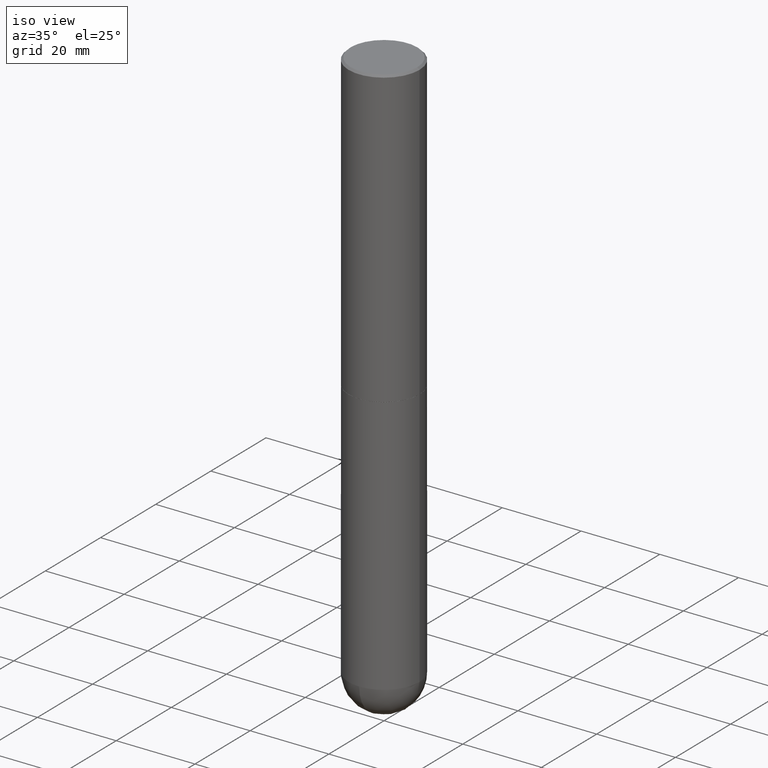
[diagram: clean part render]
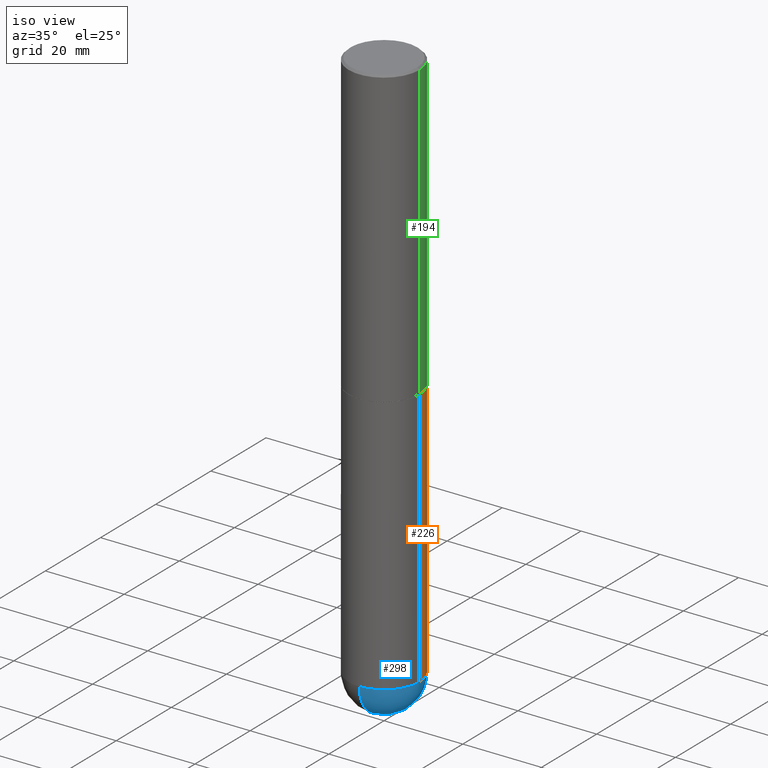
[diagram: same view with three faces highlighted in distinct colors, each labeled with its STEP entity id]
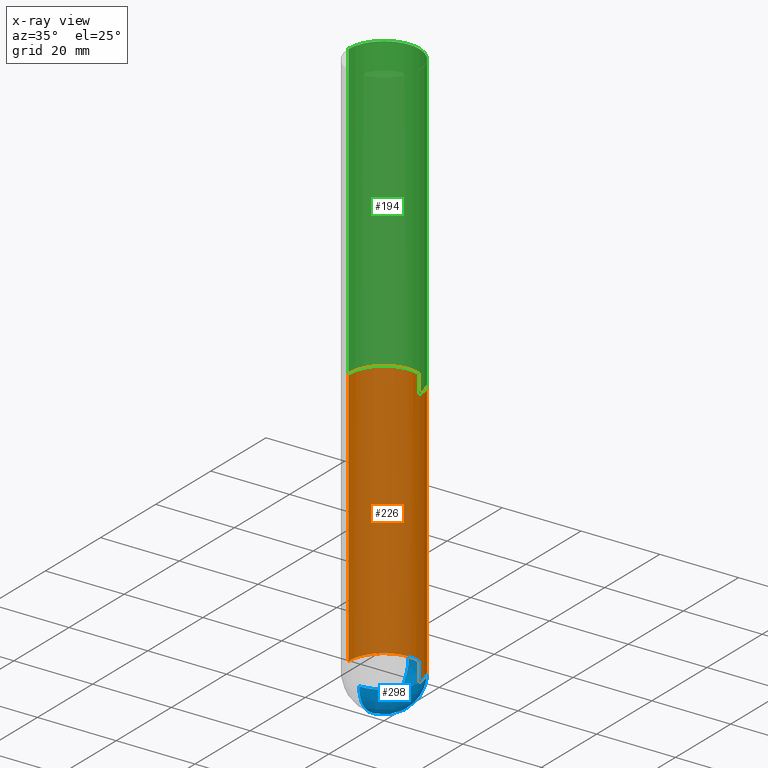
[diagram: x-ray of the same camera — body ghosted, the three highlighted faces saturated]
A machine part, iso view with three faces highlighted in distinct colors.
The next image is the same camera in x-ray (body ghosted, the three faces saturated) — at least one of them is partly hidden behind the body in this view.
Their STEP definitions:

[orange] entity #226 — the highlighted cylindrical surface (partial cylindrical patch) has radius 9.0005 mm, axis along (-0, 0, 1).
#1 = EDGE_LOOP ( 'NONE', ( #177, #388, #235, #164, #203 ) ) ;
#11 = DIRECTION ( 'NONE',  ( 1.000000000000000000, -6.982962677686265922E-15, 0.000000000000000000 ) ) ;
#42 = EDGE_CURVE ( 'NONE', #101, #334, #287, .T. ) ;
#49 = DIRECTION ( 'NONE',  ( 1.000000000000000000, -6.982962677686266711E-15, 4.876176775795935793E-29 ) ) ;
#63 = EDGE_CURVE ( 'NONE', #334, #146, #289, .T. ) ;
#66 = VECTOR ( 'NONE', #409, 39.37007874015748143 ) ;
#79 = CARTESIAN_POINT ( 'NONE',  ( -0.3543499999999999983, -1.232770860749472484E-14, -2.952700000000000102 ) ) ;
#84 = CARTESIAN_POINT ( 'NONE',  ( 7.220735744022852519E-29, -1.030929694920215502E-14, -2.952700000000000102 ) ) ;
#85 = EDGE_CURVE ( 'NONE', #101, #272, #269, .T. ) ;
#89 = DIRECTION ( 'NONE',  ( 1.000000000000000000, -6.982962677686261189E-15, 0.000000000000000000 ) ) ;
#96 = AXIS2_PLACEMENT_3D ( 'NONE', #84, #219, #11 ) ;
#101 = VERTEX_POINT ( 'NONE', #258 ) ;
#109 = CARTESIAN_POINT ( 'NONE',  ( 1.357516416345461774E-28, -1.938173663411912545E-14, -5.551149999999999807 ) ) ;
#111 = AXIS2_PLACEMENT_3D ( 'NONE', #212, #142, #49 ) ;
#114 = CARTESIAN_POINT ( 'NONE',  ( 0.3543499999999999983, -2.474412824838128694E-15, 1.727873240503289749E-29 ) ) ;
#117 = DIRECTION ( 'NONE',  ( -2.445468806185136877E-29, 3.491481338843145188E-15, 1.000000000000000000 ) ) ;
#118 = EDGE_CURVE ( 'NONE', #272, #201, #411, .T. ) ;
#122 = VECTOR ( 'NONE', #117, 39.37007874015748143 ) ;
#142 = DIRECTION ( 'NONE',  ( -2.445468806185136597E-29, 3.491481338843145583E-15, 1.000000000000000000 ) ) ;
#146 = VERTEX_POINT ( 'NONE', #79 ) ;
#150 = CARTESIAN_POINT ( 'NONE',  ( 2.474412824838263195E-15, 0.3543499999999804584, -5.551150000000000695 ) ) ;
#164 = ORIENTED_EDGE ( 'NONE', *, *, #42, .F. ) ;
#172 = LINE ( 'NONE', #338, #66 ) ;
#177 = ORIENTED_EDGE ( 'NONE', *, *, #118, .T. ) ;
#201 = VERTEX_POINT ( 'NONE', #215 ) ;
#203 = ORIENTED_EDGE ( 'NONE', *, *, #85, .T. ) ;
#212 = CARTESIAN_POINT ( 'NONE',  ( 0.000000000000000000, 0.000000000000000000, 0.000000000000000000 ) ) ;
#215 = CARTESIAN_POINT ( 'NONE',  ( -0.3543499999999999428, -1.232770860749472642E-14, -5.551149999999999807 ) ) ;
#219 = DIRECTION ( 'NONE',  ( -2.445468806185136597E-29, 3.491481338843145583E-15, 1.000000000000000000 ) ) ;
#226 = ADVANCED_FACE ( 'NONE', ( #342 ), #301, .T. ) ;
#235 = ORIENTED_EDGE ( 'NONE', *, *, #63, .F. ) ;
#258 = CARTESIAN_POINT ( 'NONE',  ( 0.3543499999999999428, -1.731992961649876932E-14, -5.551149999999999807 ) ) ;
#269 = CIRCLE ( 'NONE', #381, 0.3543499999999999428 ) ;
#272 = VERTEX_POINT ( 'NONE', #150 ) ;
#287 = LINE ( 'NONE', #114, #122 ) ;
#288 = DIRECTION ( 'NONE',  ( -2.445468806185136597E-29, 3.491481338843145583E-15, 1.000000000000000000 ) ) ;
#289 = CIRCLE ( 'NONE', #96, 0.3543499999999999983 ) ;
#291 = CARTESIAN_POINT ( 'NONE',  ( 0.3543499999999999983, -1.278370977404028332E-14, -2.952700000000000102 ) ) ;
#301 = CYLINDRICAL_SURFACE ( 'NONE', #111, 0.3543499999999999983 ) ;
#305 = DIRECTION ( 'NONE',  ( -2.445468806185136597E-29, 3.491481338843145583E-15, 1.000000000000000000 ) ) ;
#313 = AXIS2_PLACEMENT_3D ( 'NONE', #109, #305, #89 ) ;
#317 = EDGE_CURVE ( 'NONE', #201, #146, #172, .T. ) ;
#319 = CARTESIAN_POINT ( 'NONE',  ( 1.357516416345461774E-28, -1.938173663411912545E-14, -5.551149999999999807 ) ) ;
#334 = VERTEX_POINT ( 'NONE', #291 ) ;
#338 = CARTESIAN_POINT ( 'NONE',  ( -0.3543499999999999983, 2.517808184165914997E-15, -1.743024649231826066E-29 ) ) ;
#342 = FACE_OUTER_BOUND ( 'NONE', #1, .T. ) ;
#381 = AXIS2_PLACEMENT_3D ( 'NONE', #319, #288, #393 ) ;
#388 = ORIENTED_EDGE ( 'NONE', *, *, #317, .T. ) ;
#393 = DIRECTION ( 'NONE',  ( 1.000000000000000000, -6.982962677686261189E-15, 0.000000000000000000 ) ) ;
#409 = DIRECTION ( 'NONE',  ( -2.445468806185136877E-29, 3.491481338843145188E-15, 1.000000000000000000 ) ) ;
#411 = CIRCLE ( 'NONE', #313, 0.3543499999999999428 ) ;

[blue] entity #298 — the highlighted spherical surface has radius 9.0005 mm.
#6 = DIRECTION ( 'NONE',  ( 1.000000000000000000, -6.982962677686261189E-15, 0.000000000000000000 ) ) ;
#7 = EDGE_CURVE ( 'NONE', #71, #366, #407, .T. ) ;
#10 = SPHERICAL_SURFACE ( 'NONE', #363, 0.3543500000000002204 ) ;
#18 = DIRECTION ( 'NONE',  ( -2.445468806185136597E-29, 3.491481338843145583E-15, 1.000000000000000000 ) ) ;
#41 = ORIENTED_EDGE ( 'NONE', *, *, #133, .T. ) ;
#57 = CARTESIAN_POINT ( 'NONE',  ( 1.412574766574097249E-28, -2.107142773501435227E-14, -5.905499999999999972 ) ) ;
#69 = ORIENTED_EDGE ( 'NONE', *, *, #7, .F. ) ;
#71 = VERTEX_POINT ( 'NONE', #57 ) ;
#85 = EDGE_CURVE ( 'NONE', #101, #272, #269, .T. ) ;
#87 = AXIS2_PLACEMENT_3D ( 'NONE', #401, #18, #6 ) ;
#91 = CIRCLE ( 'NONE', #197, 0.3543500000000002204 ) ;
#99 = EDGE_LOOP ( 'NONE', ( #69, #41, #354, #186 ) ) ;
#101 = VERTEX_POINT ( 'NONE', #258 ) ;
#105 = DIRECTION ( 'NONE',  ( -1.000000000000000000, 6.982962677686265922E-15, -4.883557194083112340E-29 ) ) ;
#133 = EDGE_CURVE ( 'NONE', #71, #272, #91, .T. ) ;
#141 = CARTESIAN_POINT ( 'NONE',  ( 1.324404438554073486E-28, -1.985591900225917417E-14, -5.551149999999999807 ) ) ;
#150 = CARTESIAN_POINT ( 'NONE',  ( 2.474412824838263195E-15, 0.3543499999999804584, -5.551150000000000695 ) ) ;
#186 = ORIENTED_EDGE ( 'NONE', *, *, #239, .F. ) ;
#191 = AXIS2_PLACEMENT_3D ( 'NONE', #373, #390, #216 ) ;
#197 = AXIS2_PLACEMENT_3D ( 'NONE', #141, #279, #243 ) ;
#216 = DIRECTION ( 'NONE',  ( -7.105427357601001070E-15, -1.000000000000000000, 0.000000000000000000 ) ) ;
#239 = EDGE_CURVE ( 'NONE', #366, #101, #246, .T. ) ;
#242 = DIRECTION ( 'NONE',  ( 6.982962677686265922E-15, 1.000000000000000000, -3.083784951222533328E-15 ) ) ;
#243 = DIRECTION ( 'NONE',  ( 6.982962677686265133E-15, 1.000000000000000000, 0.000000000000000000 ) ) ;
#246 = CIRCLE ( 'NONE', #87, 0.3543499999999999428 ) ;
#258 = CARTESIAN_POINT ( 'NONE',  ( 0.3543499999999999428, -1.731992961649876932E-14, -5.551149999999999807 ) ) ;
#269 = CIRCLE ( 'NONE', #381, 0.3543499999999999428 ) ;
#272 = VERTEX_POINT ( 'NONE', #150 ) ;
#279 = DIRECTION ( 'NONE',  ( 1.000000000000000000, -6.982962677686265922E-15, 4.883557194083112340E-29 ) ) ;
#288 = DIRECTION ( 'NONE',  ( -2.445468806185136597E-29, 3.491481338843145583E-15, 1.000000000000000000 ) ) ;
#298 = ADVANCED_FACE ( 'NONE', ( #335 ), #10, .T. ) ;
#319 = CARTESIAN_POINT ( 'NONE',  ( 1.357516416345461774E-28, -1.938173663411912545E-14, -5.551149999999999807 ) ) ;
#335 = FACE_OUTER_BOUND ( 'NONE', #99, .T. ) ;
#350 = CARTESIAN_POINT ( 'NONE',  ( -2.517808184165781285E-15, -0.3543500000000196493, -5.551149999999998919 ) ) ;
#354 = ORIENTED_EDGE ( 'NONE', *, *, #85, .F. ) ;
#363 = AXIS2_PLACEMENT_3D ( 'NONE', #389, #105, #242 ) ;
#366 = VERTEX_POINT ( 'NONE', #350 ) ;
#373 = CARTESIAN_POINT ( 'NONE',  ( 1.324404438554073486E-28, -1.985591900225917417E-14, -5.551149999999999807 ) ) ;
#381 = AXIS2_PLACEMENT_3D ( 'NONE', #319, #288, #393 ) ;
#389 = CARTESIAN_POINT ( 'NONE',  ( 1.324404438554073486E-28, -1.985591900225917417E-14, -5.551149999999999807 ) ) ;
#390 = DIRECTION ( 'NONE',  ( -1.000000000000000000, 7.105427357601001070E-15, -4.926315508542082329E-29 ) ) ;
#393 = DIRECTION ( 'NONE',  ( 1.000000000000000000, -6.982962677686261189E-15, 0.000000000000000000 ) ) ;
#401 = CARTESIAN_POINT ( 'NONE',  ( 1.357516416345461774E-28, -1.938173663411912545E-14, -5.551149999999999807 ) ) ;
#407 = CIRCLE ( 'NONE', #191, 0.3543500000000002204 ) ;

[green] entity #194 — the highlighted cylindrical surface (partial cylindrical patch) has radius 9.0005 mm, axis along (-0, 0, 1).
#5 = VERTEX_POINT ( 'NONE', #23 ) ;
#21 = AXIS2_PLACEMENT_3D ( 'NONE', #74, #178, #358 ) ;
#23 = CARTESIAN_POINT ( 'NONE',  ( 0.3543499999999999983, -2.500847092287205690E-15, -0.02000000000000008021 ) ) ;
#40 = LINE ( 'NONE', #344, #337 ) ;
#44 = CIRCLE ( 'NONE', #130, 0.3543499999999999983 ) ;
#59 = EDGE_CURVE ( 'NONE', #5, #353, #44, .T. ) ;
#74 = CARTESIAN_POINT ( 'NONE',  ( 0.000000000000000000, 0.000000000000000000, 0.000000000000000000 ) ) ;
#78 = CYLINDRICAL_SURFACE ( 'NONE', #21, 0.3543500000000002204 ) ;
#82 = DIRECTION ( 'NONE',  ( -2.445468806185136597E-29, 3.491481338843145583E-15, 1.000000000000000000 ) ) ;
#128 = LINE ( 'NONE', #227, #192 ) ;
#130 = AXIS2_PLACEMENT_3D ( 'NONE', #347, #82, #402 ) ;
#171 = ORIENTED_EDGE ( 'NONE', *, *, #59, .F. ) ;
#178 = DIRECTION ( 'NONE',  ( -2.445468806185136597E-29, 3.491481338843145583E-15, 1.000000000000000000 ) ) ;
#181 = ORIENTED_EDGE ( 'NONE', *, *, #397, .T. ) ;
#185 = CARTESIAN_POINT ( 'NONE',  ( 0.3543500000000004424, -1.278021829270144662E-14, -2.951700000000000212 ) ) ;
#192 = VECTOR ( 'NONE', #323, 39.37007874015748143 ) ;
#194 = ADVANCED_FACE ( 'NONE', ( #283 ), #78, .T. ) ;
#207 = EDGE_LOOP ( 'NONE', ( #329, #181, #171, #343 ) ) ;
#208 = DIRECTION ( 'NONE',  ( 1.000000000000000000, -6.982962677686268288E-15, 0.000000000000000000 ) ) ;
#220 = CIRCLE ( 'NONE', #276, 0.3543500000000004424 ) ;
#227 = CARTESIAN_POINT ( 'NONE',  ( -0.3543500000000002204, 2.517808184165916574E-15, -1.743024649231827187E-29 ) ) ;
#234 = EDGE_CURVE ( 'NONE', #375, #357, #220, .T. ) ;
#262 = EDGE_CURVE ( 'NONE', #375, #5, #40, .T. ) ;
#276 = AXIS2_PLACEMENT_3D ( 'NONE', #372, #307, #208 ) ;
#278 = DIRECTION ( 'NONE',  ( -2.445468806185136877E-29, 3.491481338843145188E-15, 1.000000000000000000 ) ) ;
#283 = FACE_OUTER_BOUND ( 'NONE', #207, .T. ) ;
#307 = DIRECTION ( 'NONE',  ( -2.445468806185136597E-29, 3.491481338843145583E-15, 1.000000000000000000 ) ) ;
#323 = DIRECTION ( 'NONE',  ( -2.445468806185136877E-29, 3.491481338843145188E-15, 1.000000000000000000 ) ) ;
#328 = CARTESIAN_POINT ( 'NONE',  ( -0.3543500000000004424, -2.670009363154166740E-15, -2.951700000000000212 ) ) ;
#329 = ORIENTED_EDGE ( 'NONE', *, *, #234, .T. ) ;
#337 = VECTOR ( 'NONE', #278, 39.37007874015748143 ) ;
#343 = ORIENTED_EDGE ( 'NONE', *, *, #262, .F. ) ;
#344 = CARTESIAN_POINT ( 'NONE',  ( 0.3543500000000002204, -2.474412824838130272E-15, 1.727873240503290870E-29 ) ) ;
#347 = CARTESIAN_POINT ( 'NONE',  ( 4.890937612370293302E-31, -6.982962677686318726E-17, -0.02000000000000008021 ) ) ;
#353 = VERTEX_POINT ( 'NONE', #379 ) ;
#357 = VERTEX_POINT ( 'NONE', #328 ) ;
#358 = DIRECTION ( 'NONE',  ( 1.000000000000000000, -6.982962677686266711E-15, 4.876176775795935793E-29 ) ) ;
#372 = CARTESIAN_POINT ( 'NONE',  ( 7.218290275216666916E-29, -1.030580546786331359E-14, -2.951700000000000212 ) ) ;
#375 = VERTEX_POINT ( 'NONE', #185 ) ;
#379 = CARTESIAN_POINT ( 'NONE',  ( -0.3543499999999999983, 2.404583198061265396E-15, -0.02000000000000008021 ) ) ;
#397 = EDGE_CURVE ( 'NONE', #357, #353, #128, .T. ) ;
#402 = DIRECTION ( 'NONE',  ( 1.000000000000000000, -6.982962677686266711E-15, 0.000000000000000000 ) ) ;